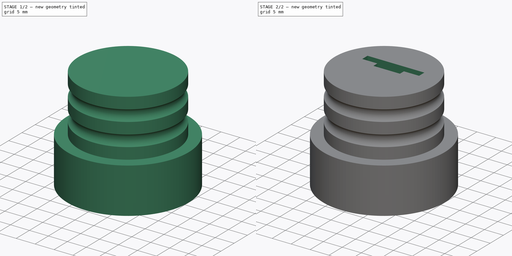
[diagram: build sequence overview — one tinted view per stage of 2, left to right]
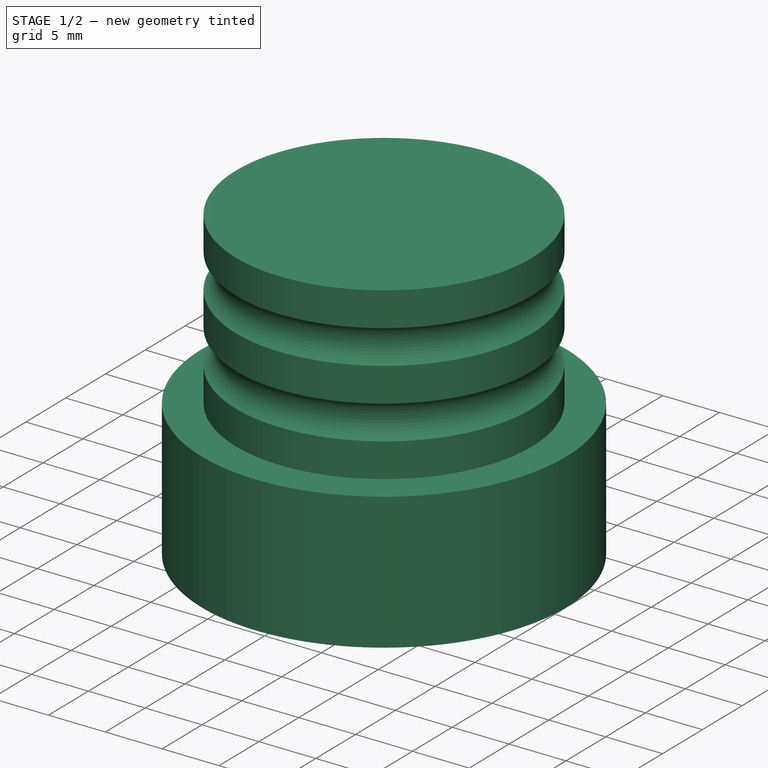
[diagram: stage 1 of 2 — iso view after this stage's code; geometry added in this stage tinted green]
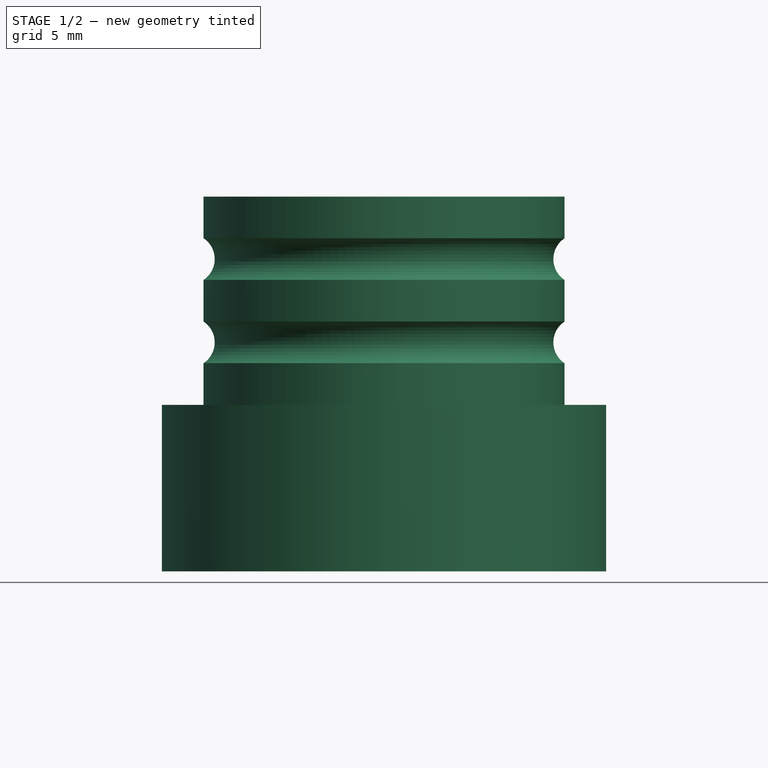
[diagram: stage 1 of 2 — front view after this stage's code; geometry added in this stage tinted green]
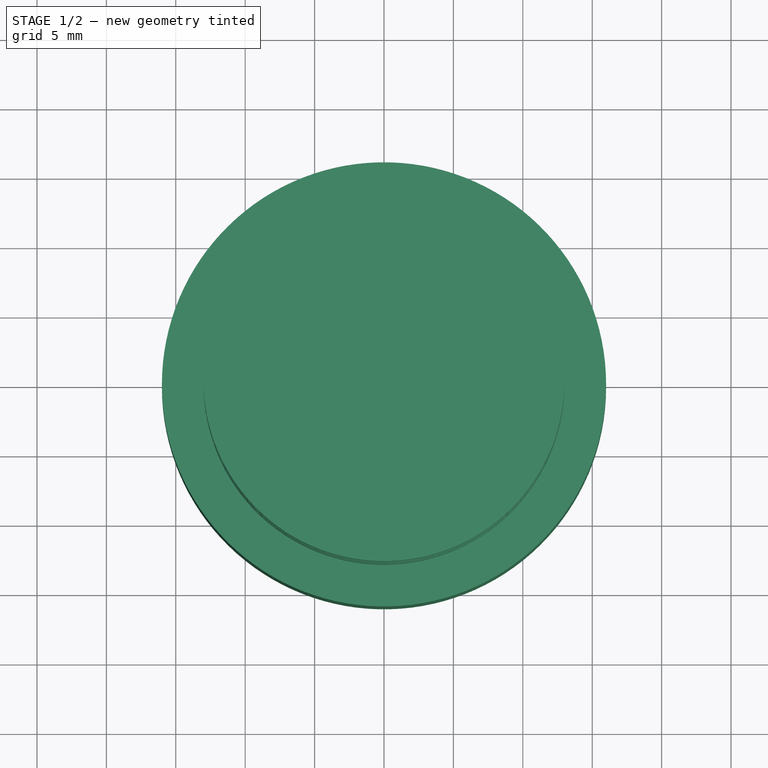
[diagram: stage 1 of 2 — top view after this stage's code; geometry added in this stage tinted green]
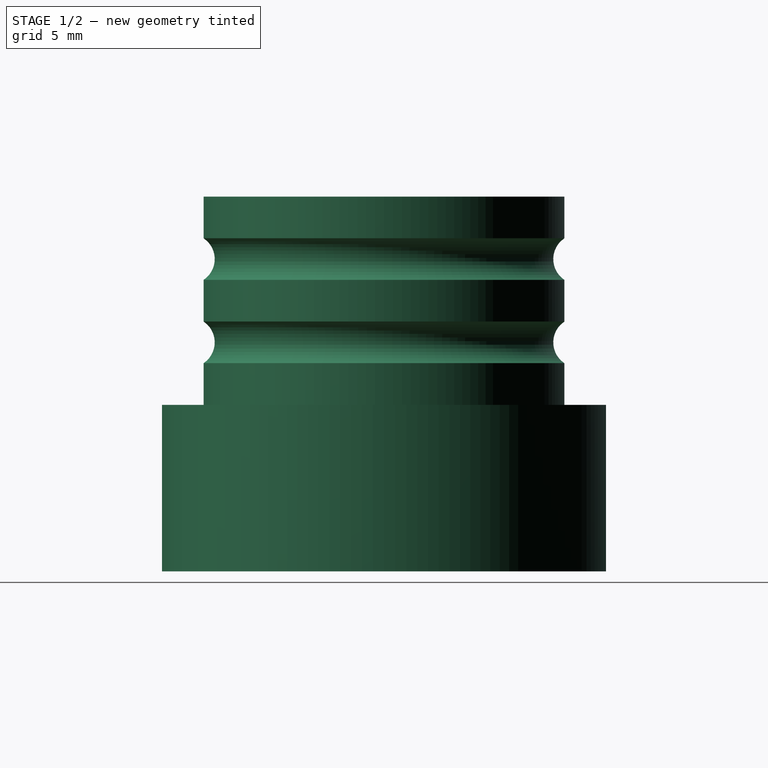
[diagram: stage 1 of 2 — right view after this stage's code; geometry added in this stage tinted green]
FCSTD DOCUMENT  (FreeCAD 0.20R29410 (Git))
Label: Endcap
License: All rights reserved
LicenseURL: http://en.wikipedia.org/wiki/All_rights_reserved
objects: Sketcher::SketchObject×4, PartDesign::Pad×1, PartDesign::Groove×1, PartDesign::Pocket×1, PartDesign::Fillet×1, PartDesign::Body×1
note: 13 computed .brp shape members not serialized (recipe doc carries the construction recipe); baked Part::Feature solids carry a one-line shape summary decoded from their .brp

FEATURE [Sketcher::SketchObject] Sketch
  FullyConstrained = true
  MapMode = 5
  Support = -> [XY_Plane]
  sketch-geometry (1):
    g0: Circle CenterX=0 CenterY=0 CenterZ=0 NormalX=0 NormalY=0 NormalZ=1 AngleXU=0 Radius=16
  constraints (2):
    c: Coincident(g0,g-1)
    c: Diameter(g0) = 32
FEATURE [PartDesign::Pad] Pad
  Direction = (0,0,1)
  Length = 27
  Length2 = 10
  Profile = -> Sketch
  ReferenceAxis = -> Sketch [N_Axis]
  Type = 0
FEATURE [Sketcher::SketchObject] Sketch001
  FullyConstrained = true
  MapMode = 5
  Placement = pos=(0,0,0) rot=(1,0,0;1.5708rad)
  Support = -> [XZ_Plane]
  sketch-geometry (11):
    g0: LineSegment StartX=-16 StartY=27 StartZ=0 EndX=-13 EndY=27 EndZ=0
    g1: LineSegment StartX=-13 StartY=27 StartZ=0 EndX=-13 EndY=24 EndZ=0
    g2: LineSegment StartX=-13 StartY=21 StartZ=0 EndX=-13 EndY=18 EndZ=0
    g3: LineSegment StartX=-13 StartY=12 StartZ=0 EndX=-16 EndY=12 EndZ=0
    g4: LineSegment StartX=-16 StartY=12 StartZ=0 EndX=-16 EndY=27 EndZ=0
    g5: LineSegment StartX=-13 StartY=15 StartZ=0 EndX=-13 EndY=12 EndZ=0
    g6: Circle CenterX=-14 CenterY=22.5 CenterZ=0 NormalX=0 NormalY=0 NormalZ=1 AngleXU=0 Radius=2
    g7: ArcOfCircle CenterX=-14 CenterY=22.5 CenterZ=0 NormalX=0 NormalY=0 NormalZ=1 AngleXU=0 Radius=1.80278 StartAngle=5.30039 EndAngle=7.26598
    g8: ArcOfCircle CenterX=-14 CenterY=16.5 CenterZ=0 NormalX=0 NormalY=0 NormalZ=1 AngleXU=0 Radius=1.80278 StartAngle=5.30039 EndAngle=7.26598
    g9: LineSegment StartX=-13 StartY=24 StartZ=0 EndX=-13 EndY=21 EndZ=0
    g10: LineSegment StartX=-13 StartY=18 StartZ=0 EndX=-13 EndY=15 EndZ=0
  constraints (33):
    c: Horizontal(g0)
    c: Coincident(g1,g0)
    c: Vertical(g2)
    c: Horizontal(g3)
    c: Coincident(g4,g3)
    c: Coincident(g4,g0)
    c: Vertical(g4)
    c: DistanceY(g-1,g0) = 27
    c: DistanceY(g-1,g3) = 12
    c: DistanceX(g3,g-1) = 16
    c: Coincident(g5,g3)
    c: DistanceY(g4,g4) = 15
    c: Vertical(g5)
    c: Parallel(g2,g1)
    c: DistanceX(g3,g3) = 3
    c: Coincident(g7,g6)
    c: Coincident(g7,g1)
    c: Coincident(g7,g2)
    c: Coincident(g8,g2)
    c: Coincident(g8,g5)
    c: Equal(g7,g8)
    c: Coincident(g9,g1)
    c: Coincident(g9,g2)
    c: Vertical(g9)
    c: Coincident(g10,g2)
    c: Coincident(g10,g5)
    c: Vertical(g10)
    c: Equal(g5,g10)
    c: Equal(g10,g2)
    c: Equal(g2,g9)
    c: Equal(g9,g1)
    c: DistanceX(g8,g3) = 1
    c: Diameter(g6) = 4
FEATURE [PartDesign::Groove] Groove
  Angle = 360
  Axis = (0,2e-16,1)
  Base = (0,0,0)
  BaseFeature = -> Pad
  Profile = -> Sketch001
  ReferenceAxis = -> Sketch001 [V_Axis]
  Reversed = true
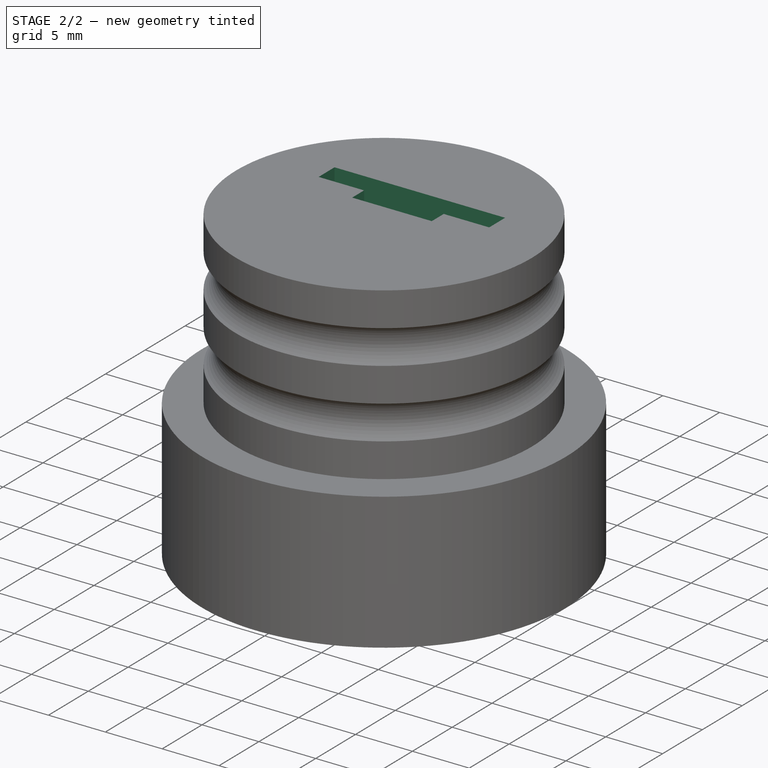
[diagram: stage 2 of 2 — iso view after this stage's code; geometry added in this stage tinted green]
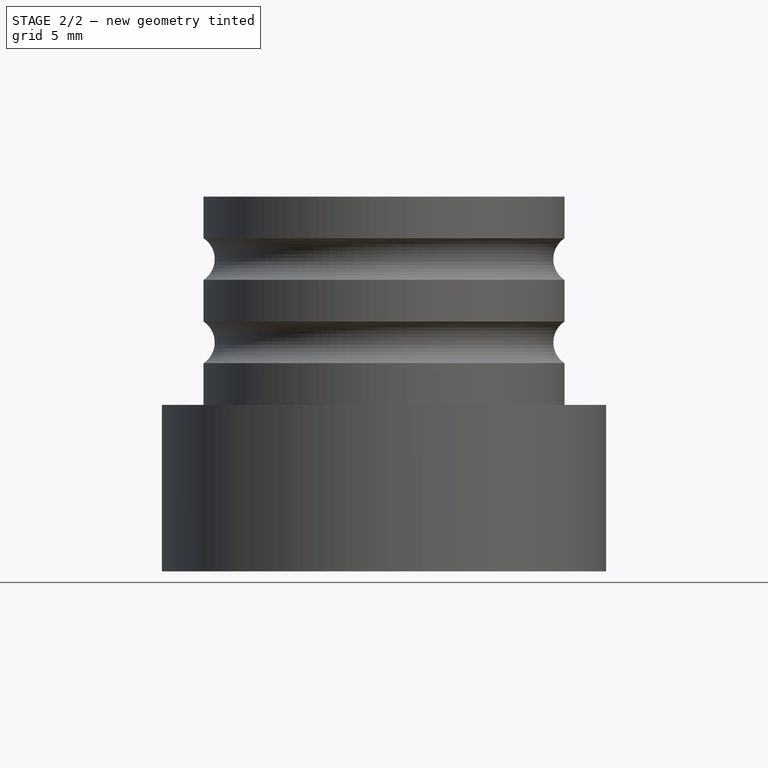
[diagram: stage 2 of 2 — front view after this stage's code; geometry added in this stage tinted green]
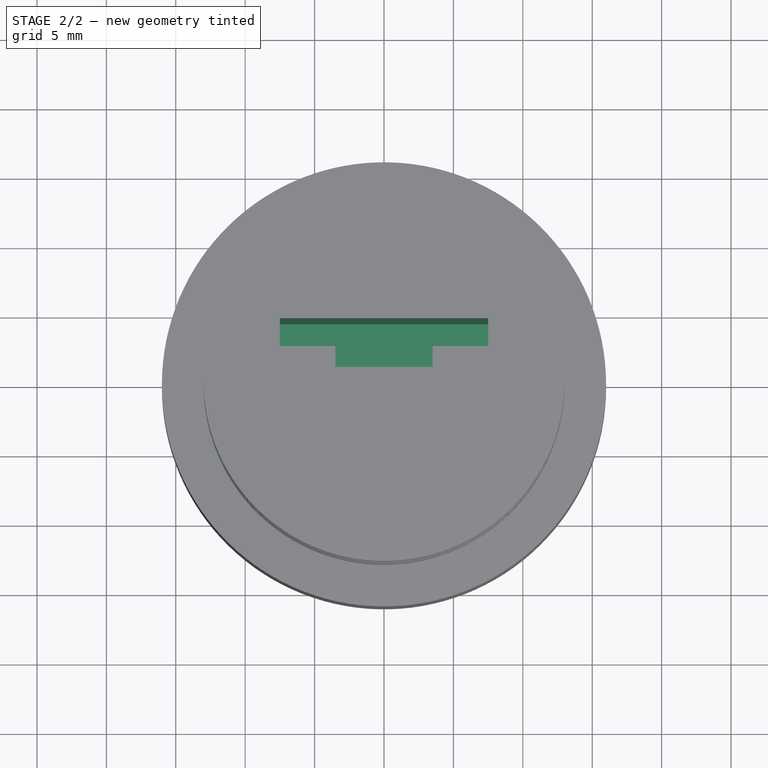
[diagram: stage 2 of 2 — top view after this stage's code; geometry added in this stage tinted green]
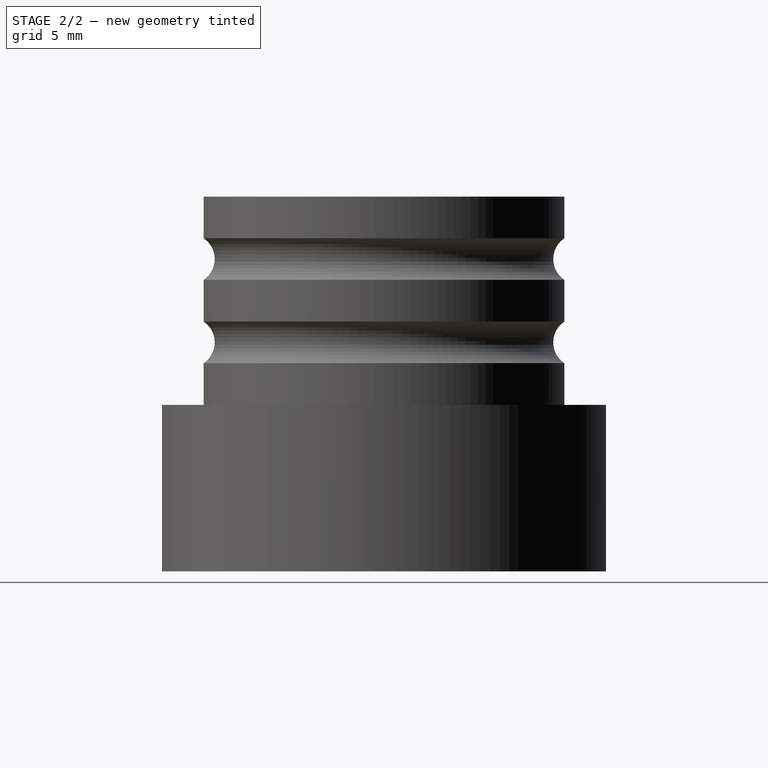
[diagram: stage 2 of 2 — right view after this stage's code; geometry added in this stage tinted green]
FEATURE [Sketcher::SketchObject] Sketch002
  FullyConstrained = true
  MapMode = 5
  Placement = pos=(0,0,27) rot=(0,0,1;0rad)
  Support = -> [Groove]
  sketch-geometry (8):
    g0: LineSegment StartX=-7.5 StartY=4.5 StartZ=0 EndX=7.5 EndY=4.5 EndZ=0
    g1: LineSegment StartX=7.5 StartY=4.5 StartZ=0 EndX=7.5 EndY=2.5 EndZ=0
    g2: LineSegment StartX=-7.5 StartY=2.5 StartZ=0 EndX=-7.5 EndY=4.5 EndZ=0
    g3: LineSegment StartX=-7.5 StartY=2.5 StartZ=0 EndX=-3.5 EndY=2.5 EndZ=0
    g4: LineSegment StartX=-3.5 StartY=2.5 StartZ=0 EndX=-3.5 EndY=1 EndZ=0
    g5: LineSegment StartX=-3.5 StartY=1 StartZ=0 EndX=3.5 EndY=1 EndZ=0
    g6: LineSegment StartX=3.5 StartY=1 StartZ=0 EndX=3.5 EndY=2.5 EndZ=0
    g7: LineSegment StartX=3.5 StartY=2.5 StartZ=0 EndX=7.5 EndY=2.5 EndZ=0
  constraints (24):
    c: Coincident(g0,g1)
    c: Coincident(g2,g0)
    c: Horizontal(g0)
    c: Vertical(g1)
    c: Vertical(g2)
    c: DistanceY(g1,g1) = 2
    c: DistanceY(g-1,g2) = 2.5
    c: DistanceX(g0,g0) = 15
    c: DistanceX(g2,g-1) = 7.5
    c: Coincident(g3,g2)
    c: Horizontal(g3)
    c: Coincident(g4,g3)
    c: Coincident(g5,g4)
    c: Horizontal(g5)
    c: Coincident(g6,g5)
    c: Vertical(g6)
    c: Coincident(g7,g6)
    c: Coincident(g7,g1)
    c: Horizontal(g7)
    c: Equal(g3,g7)
    c: Vertical(g4)
    c: Equal(g4,g6)
    c: DistanceY(g6,g6) = 1.5
    c: DistanceX(g5,g5) = 7
FEATURE [PartDesign::Pocket] Pocket
  BaseFeature = -> Groove
  Direction = (0,0,-1)
  Length = 25
  Length2 = 5
  Profile = -> Sketch002
  ReferenceAxis = -> Sketch002 [N_Axis]
  Type = 0
FEATURE [Sketcher::SketchObject] Sketch003
  FullyConstrained = true
  MapMode = 5
  Placement = pos=(0,0,0) rot=(1,0,0;1.5708rad)
  Support = -> [XZ_Plane]
  sketch-geometry (1):
    g0: Circle CenterX=0 CenterY=6 CenterZ=0 NormalX=0 NormalY=0 NormalZ=1 AngleXU=0 Radius=3
  constraints (3):
    c: PointOnObject(g0,g-2)
    c: Diameter(g0) = 6
    c: DistanceY(g-1,g0) = 6
FEATURE [PartDesign::Fillet] Fillet
  Base = -> Pocket
  BaseFeature = -> Pocket
  Radius = 1
  SupportTransform = false
  UseAllEdges = false
FEATURE [PartDesign::Body] Body
  Group = -> [Sketch,Pad,Sketch001,Groove,Sketch002,Pocket,Sketch003,Fillet]
  Origin = -> Origin
  Tip = -> Fillet
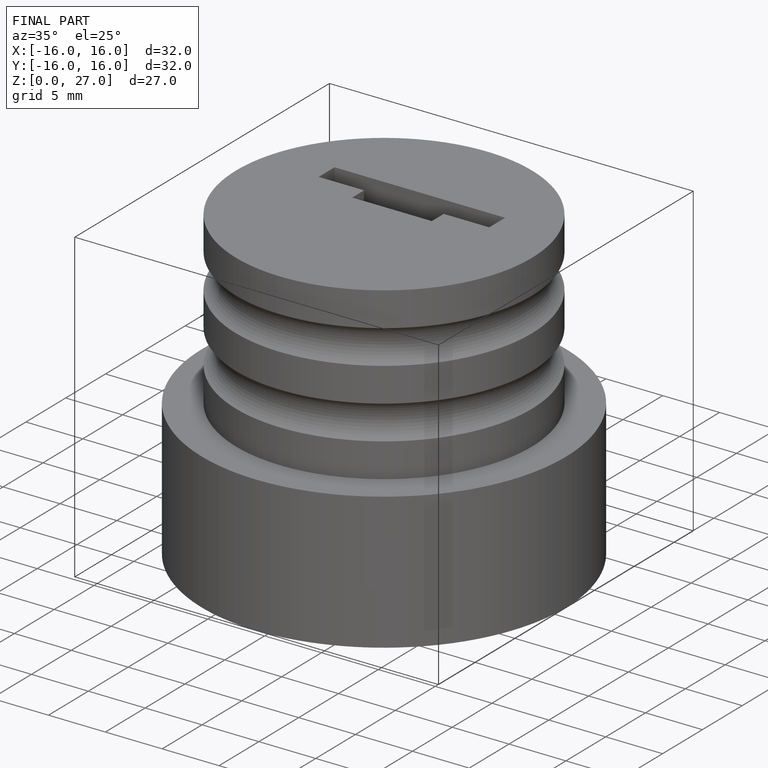
[diagram: finished part — iso view with bounding-box wireframe]
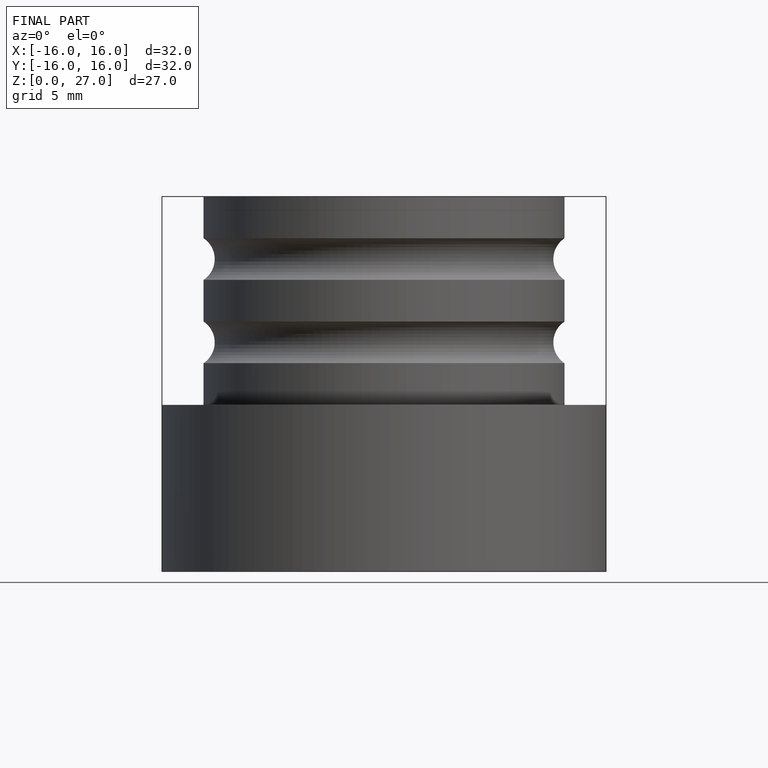
[diagram: finished part — front view with bounding-box wireframe]
